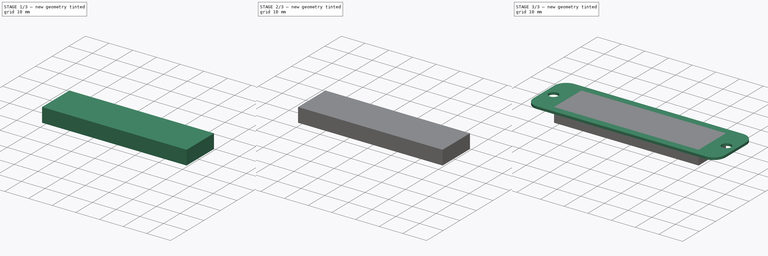
[diagram: build sequence overview — one tinted view per stage of 3, left to right]
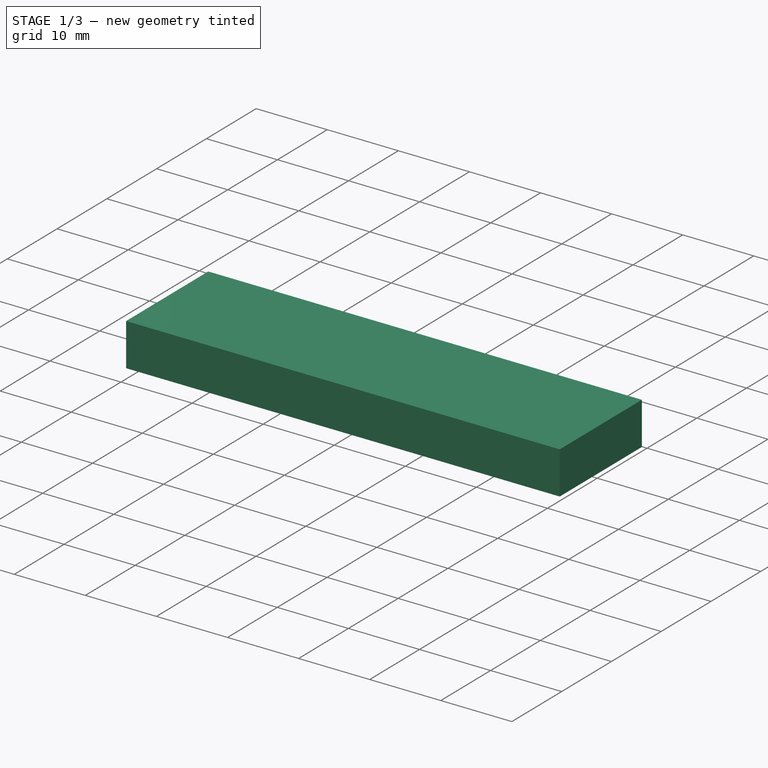
[diagram: stage 1 of 3 — iso view after this stage's code; geometry added in this stage tinted green]
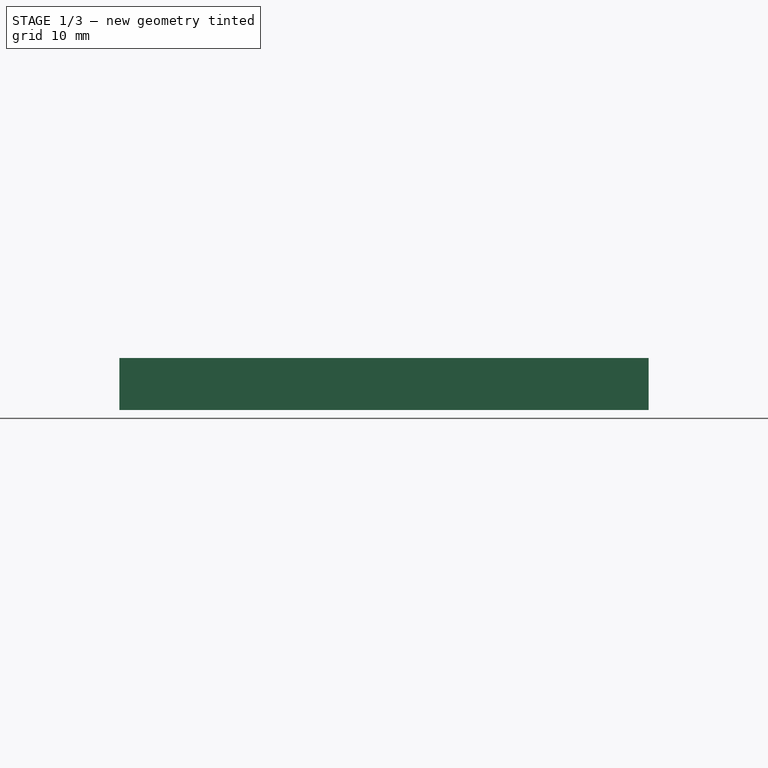
[diagram: stage 1 of 3 — front view after this stage's code; geometry added in this stage tinted green]
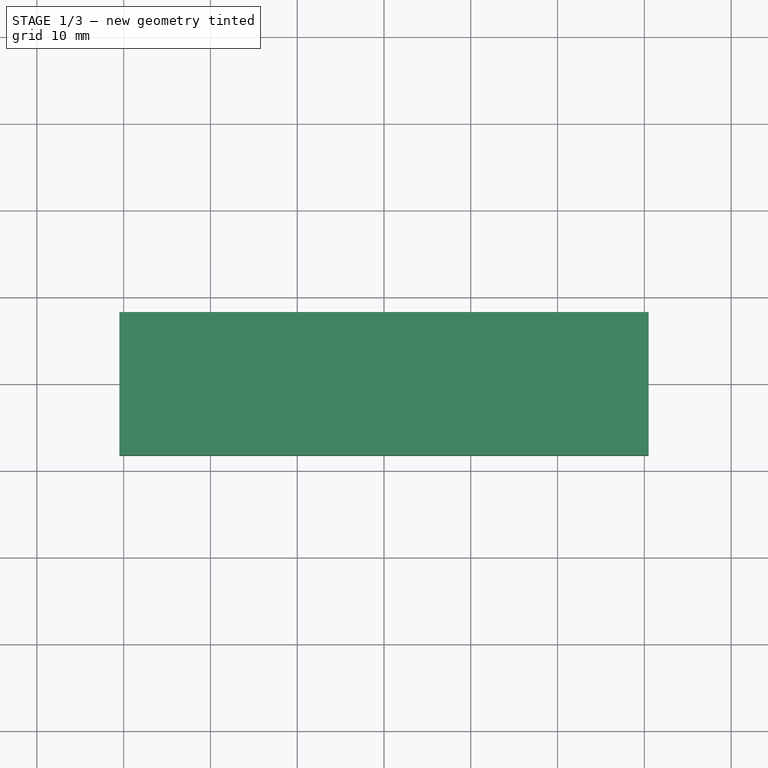
[diagram: stage 1 of 3 — top view after this stage's code; geometry added in this stage tinted green]
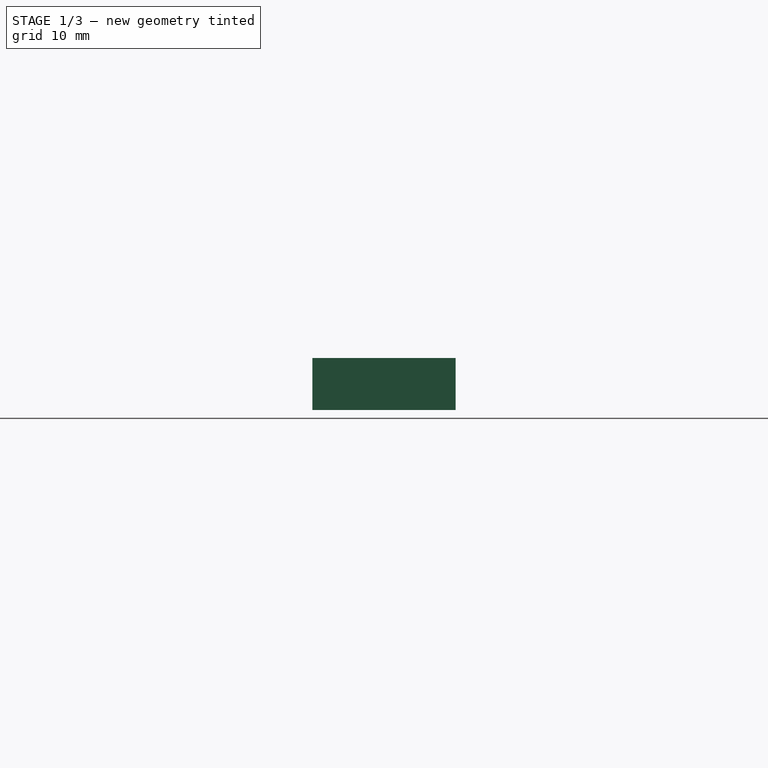
[diagram: stage 1 of 3 — right view after this stage's code; geometry added in this stage tinted green]
FCSTD DOCUMENT  (FreeCAD 0.19R24291 (Git))
Label: ws2812_holder
License: All rights reserved
LicenseURL: http://en.wikipedia.org/wiki/All_rights_reserved
objects: Sketcher::SketchObject×4, PartDesign::Pad×2, PartDesign::Pocket×2, PartDesign::Fillet×1, PartDesign::Body×1
note: 15 computed .brp shape members not serialized (recipe doc carries the construction recipe); baked Part::Feature solids carry a one-line shape summary decoded from their .brp

FEATURE [Sketcher::SketchObject] Sketch
  FullyConstrained = true
  MapMode = 5
  Support = -> [XY_Plane]
  sketch-geometry (8):
    g0: LineSegment StartX=-30.5 StartY=8.25 StartZ=0 EndX=30.5 EndY=8.25 EndZ=0
    g1: LineSegment StartX=30.5 StartY=8.25 StartZ=0 EndX=30.5 EndY=-8.25 EndZ=0
    g2: LineSegment StartX=30.5 StartY=-8.25 StartZ=0 EndX=-30.5 EndY=-8.25 EndZ=0
    g3: LineSegment StartX=-30.5 StartY=-8.25 StartZ=0 EndX=-30.5 EndY=8.25 EndZ=0
    g4: LineSegment StartX=-27.5 StartY=5.25 StartZ=0 EndX=27.5 EndY=5.25 EndZ=0
    g5: LineSegment StartX=27.5 StartY=5.25 StartZ=0 EndX=27.5 EndY=-5.25 EndZ=0
    g6: LineSegment StartX=27.5 StartY=-5.25 StartZ=0 EndX=-27.5 EndY=-5.25 EndZ=0
    g7: LineSegment StartX=-27.5 StartY=-5.25 StartZ=0 EndX=-27.5 EndY=5.25 EndZ=0
  constraints (22):
    c: Coincident(g0,g1)
    c: Coincident(g1,g2)
    c: Coincident(g2,g3)
    c: Coincident(g3,g0)
    c: Horizontal(g0)
    c: Horizontal(g2)
    c: Vertical(g1)
    c: Vertical(g3)
    c: Symmetric(g1,g0,g-1)
    c: Coincident(g4,g5)
    c: Coincident(g5,g6)
    c: Coincident(g6,g7)
    c: Coincident(g7,g4)
    c: Horizontal(g4)
    c: Horizontal(g6)
    c: Vertical(g5)
    c: Vertical(g7)
    c: Symmetric(g4,g5,g-1)
    c: Distance(g4) = 55
    c: Distance(g4,g1) = 3
    c: Distance(g5,g2) = 3
    c: Distance(g7) = 10.5
FEATURE [PartDesign::Pad] Pad
  Direction = (1,1,1)
  Length = 6
  Length2 = 100
  Profile = -> Sketch
  Type = 0
FEATURE [Sketcher::SketchObject] Sketch001
  FullyConstrained = true
  MapMode = 5
  Support = -> [XY_Plane]
  expr: Constraints[9] = Sketch.Constraints[18]
  expr: Constraints[10] = Sketch.Constraints[21]
  sketch-geometry (7):
    g0: LineSegment StartX=-27.5 StartY=5.25 StartZ=0 EndX=27.5 EndY=5.25 EndZ=0
    g1: LineSegment StartX=27.5 StartY=5.25 StartZ=0 EndX=27.5 EndY=-5.25 EndZ=0
    g2: LineSegment StartX=27.5 StartY=-5.25 StartZ=0 EndX=-27.5 EndY=-5.25 EndZ=0
    g3: LineSegment StartX=-27.5 StartY=-5.25 StartZ=0 EndX=-27.5 EndY=5.25 EndZ=0
    g4: LineSegment StartX=-27.5 StartY=-3.25 StartZ=0 EndX=27.5 EndY=-3.25 EndZ=0
    g5: Circle CenterX=-13 CenterY=-3.25 CenterZ=0 NormalX=0 NormalY=0 NormalZ=1 AngleXU=0 Radius=1
    g6: Circle CenterX=13 CenterY=-3.25 CenterZ=0 NormalX=0 NormalY=0 NormalZ=1 AngleXU=0 Radius=1
  constraints (20):
    c: Coincident(g0,g1)
    c: Coincident(g1,g2)
    c: Coincident(g2,g3)
    c: Coincident(g3,g0)
    c: Horizontal(g0)
    c: Horizontal(g2)
    c: Vertical(g1)
    c: Vertical(g3)
    c: Symmetric(g0,g1,g-1)
    c: Distance(g0) = 55
    c: Distance(g3) = 10.5
    c: PointOnObject(g4,g3)
    c: PointOnObject(g4,g1)
    c: Horizontal(g4)
    c: DistanceY(g1,g4) = 2
    c: PointOnObject(g5,g4)
    c: Equal(g6,g5)
    c: Diameter(g5) = 2
    c: DistanceX(g5,g6) = 26
    c: Symmetric(g6,g5,g-2)
FEATURE [PartDesign::Pocket] Pocket
  BaseFeature = -> Pad
  Length = 3
  Length2 = 100
  Profile = -> Sketch001
  Reversed = true
  Type = 0
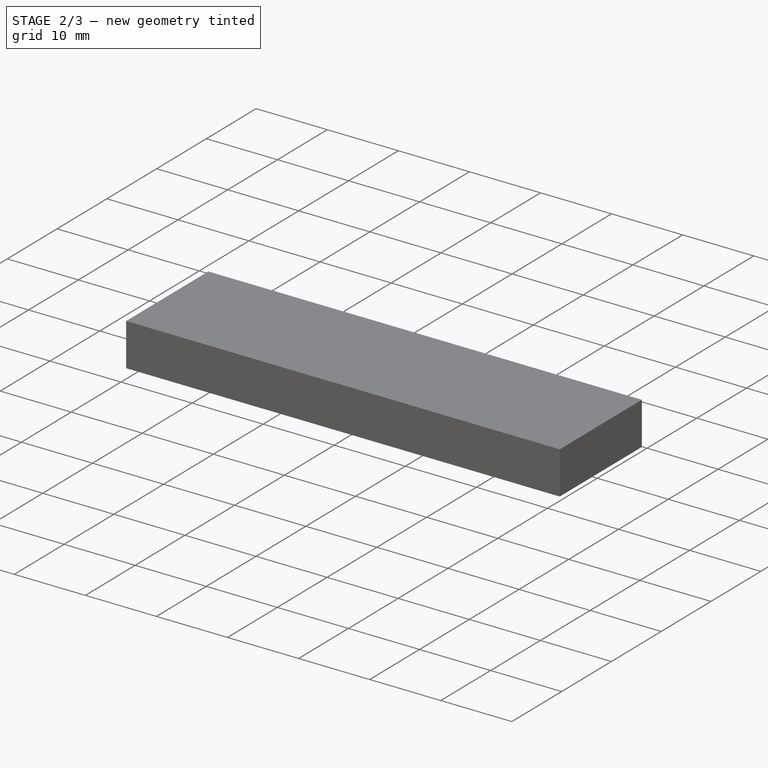
[diagram: stage 2 of 3 — iso view after this stage's code; geometry added in this stage tinted green]
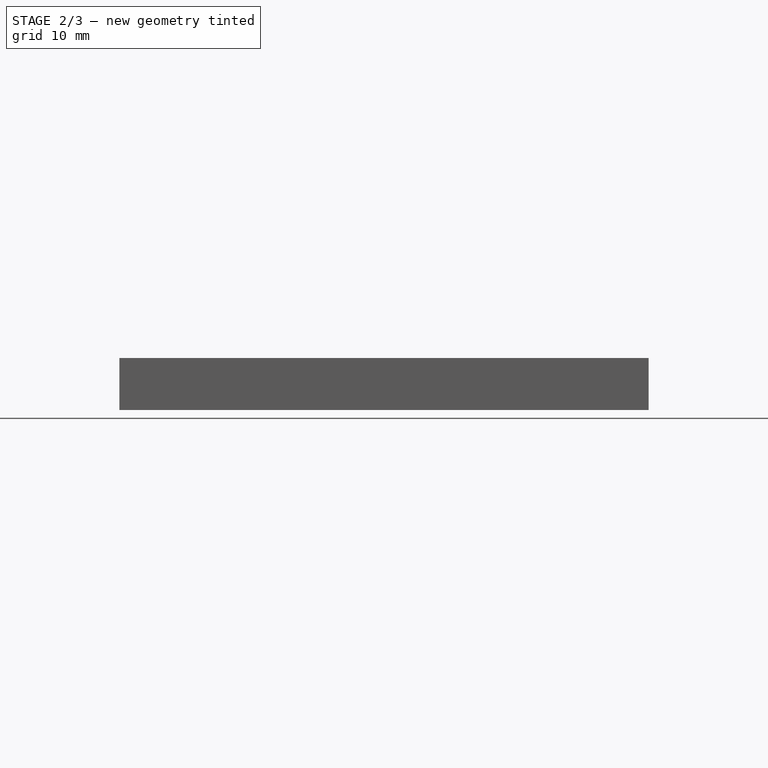
[diagram: stage 2 of 3 — front view after this stage's code; geometry added in this stage tinted green]
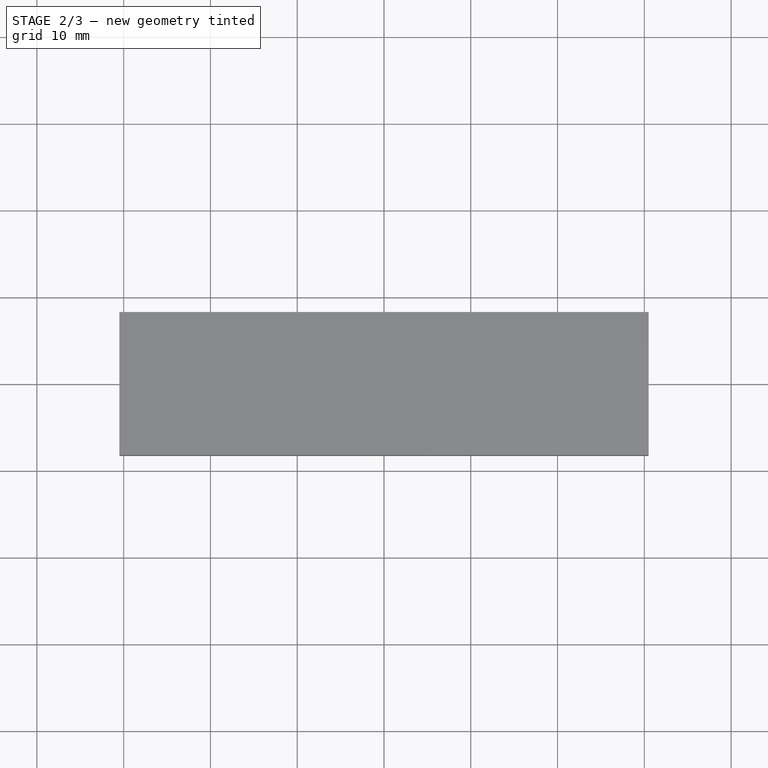
[diagram: stage 2 of 3 — top view after this stage's code; geometry added in this stage tinted green]
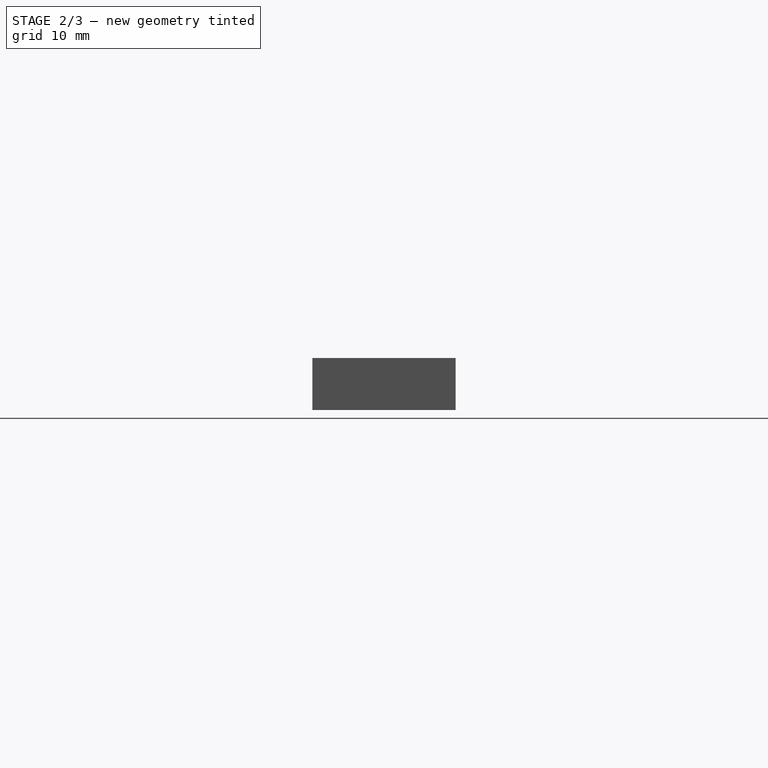
[diagram: stage 2 of 3 — right view after this stage's code; geometry added in this stage tinted green]
FEATURE [Sketcher::SketchObject] Sketch002
  FullyConstrained = true
  MapMode = 5
  Support = -> [XY_Plane]
  expr: Constraints[9] = Sketch001.Constraints[9]
  expr: Constraints[10] = Sketch001.Constraints[10]
  sketch-geometry (7):
    g0: LineSegment StartX=-27.5 StartY=5.25 StartZ=0 EndX=27.5 EndY=5.25 EndZ=0
    g1: LineSegment StartX=27.5 StartY=5.25 StartZ=0 EndX=27.5 EndY=-5.25 EndZ=0
    g2: LineSegment StartX=27.5 StartY=-5.25 StartZ=0 EndX=-27.5 EndY=-5.25 EndZ=0
    g3: LineSegment StartX=-27.5 StartY=-5.25 StartZ=0 EndX=-27.5 EndY=5.25 EndZ=0
    g4: LineSegment StartX=-27.5 StartY=5.25 StartZ=0 EndX=-27.5 EndY=-0.75 EndZ=0
    g5: LineSegment StartX=-27.5 StartY=-0.75 StartZ=0 EndX=27.5 EndY=-0.75 EndZ=0
    g6: LineSegment StartX=27.5 StartY=-0.75 StartZ=0 EndX=27.5 EndY=5.25 EndZ=0
  constraints (19):
    c: Coincident(g0,g1)
    c: Coincident(g1,g2)
    c: Coincident(g2,g3)
    c: Coincident(g3,g0)
    c: Horizontal(g0)
    c: Horizontal(g2)
    c: Vertical(g1)
    c: Vertical(g3)
    c: Symmetric(g0,g1,g-1)
    c: Distance(g0) = 55
    c: Distance(g3) = 10.5
    c: Coincident(g4,g0)
    c: PointOnObject(g4,g3)
    c: Coincident(g5,g4)
    c: PointOnObject(g5,g1)
    c: Horizontal(g5)
    c: Coincident(g6,g5)
    c: Coincident(g6,g0)
    c: Distance(g6) = 6
FEATURE [PartDesign::Pocket] Pocket001
  BaseFeature = -> Pocket
  Length = 4
  Length2 = 100
  Profile = -> Sketch002
  Reversed = true
  Type = 0
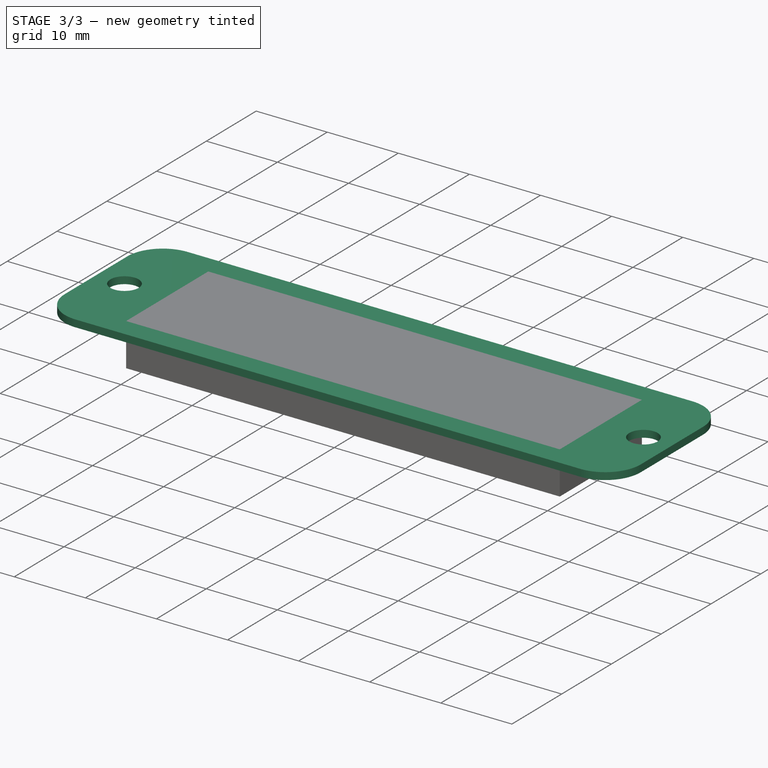
[diagram: stage 3 of 3 — iso view after this stage's code; geometry added in this stage tinted green]
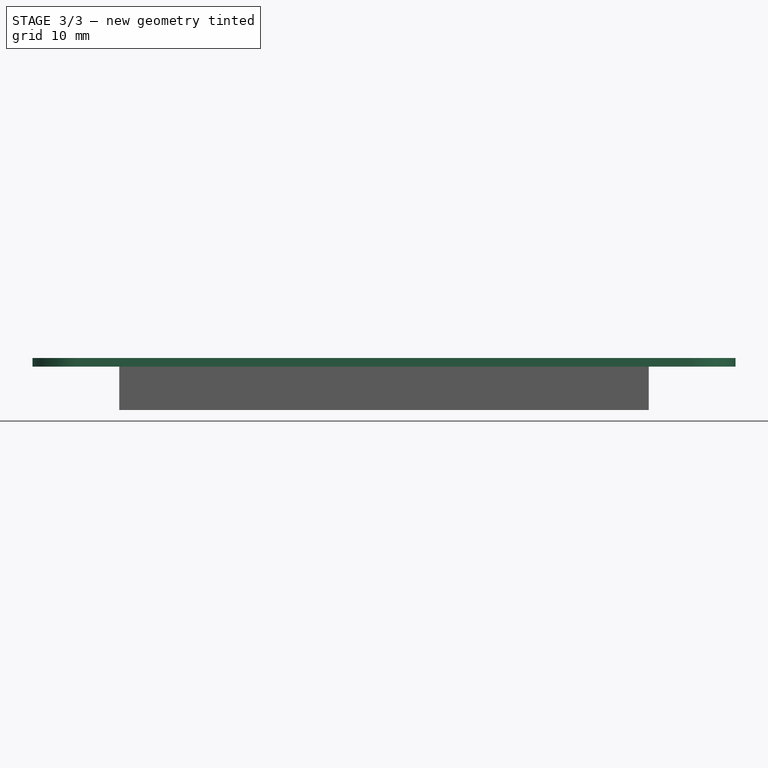
[diagram: stage 3 of 3 — front view after this stage's code; geometry added in this stage tinted green]
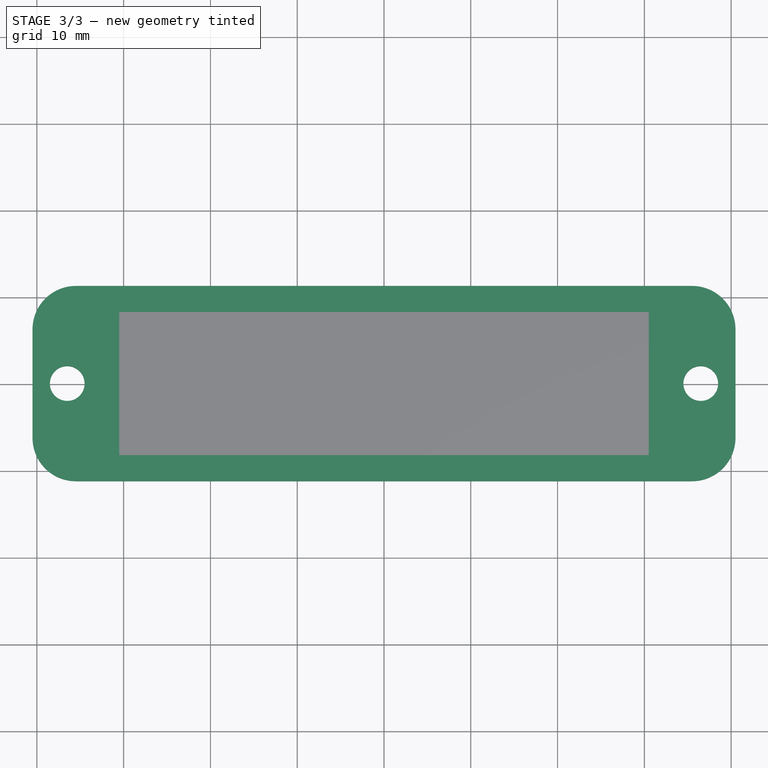
[diagram: stage 3 of 3 — top view after this stage's code; geometry added in this stage tinted green]
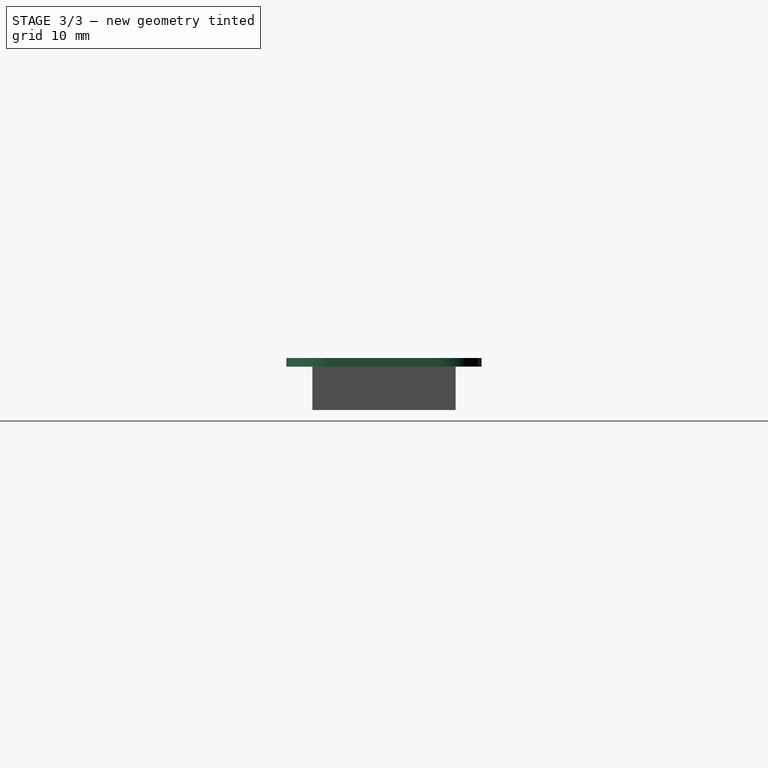
[diagram: stage 3 of 3 — right view after this stage's code; geometry added in this stage tinted green]
FEATURE [Sketcher::SketchObject] Sketch003
  FullyConstrained = true
  MapMode = 5
  Support = -> [XY_Plane]
  expr: Constraints[18] = Sketch.Constraints[18]
  expr: Constraints[19] = Sketch.Constraints[19]
  expr: Constraints[20] = Sketch.Constraints[20]
  expr: Constraints[21] = Sketch.Constraints[21]
  sketch-geometry (14):
    g0: LineSegment StartX=-30.5 StartY=8.25 StartZ=0 EndX=30.5 EndY=8.25 EndZ=0
    g1: LineSegment StartX=30.5 StartY=8.25 StartZ=0 EndX=30.5 EndY=-8.25 EndZ=0
    g2: LineSegment StartX=30.5 StartY=-8.25 StartZ=0 EndX=-30.5 EndY=-8.25 EndZ=0
    g3: LineSegment StartX=-30.5 StartY=-8.25 StartZ=0 EndX=-30.5 EndY=8.25 EndZ=0
    g4: LineSegment StartX=-27.5 StartY=5.25 StartZ=0 EndX=27.5 EndY=5.25 EndZ=0
    g5: LineSegment StartX=27.5 StartY=5.25 StartZ=0 EndX=27.5 EndY=-5.25 EndZ=0
    g6: LineSegment StartX=27.5 StartY=-5.25 StartZ=0 EndX=-27.5 EndY=-5.25 EndZ=0
    g7: LineSegment StartX=-27.5 StartY=-5.25 StartZ=0 EndX=-27.5 EndY=5.25 EndZ=0
    g8: LineSegment StartX=-40.5 StartY=11.25 StartZ=0 EndX=40.5 EndY=11.25 EndZ=0
    g9: LineSegment StartX=40.5 StartY=11.25 StartZ=0 EndX=40.5 EndY=-11.25 EndZ=0
    g10: LineSegment StartX=40.5 StartY=-11.25 StartZ=0 EndX=-40.5 EndY=-11.25 EndZ=0
    g11: LineSegment StartX=-40.5 StartY=-11.25 StartZ=0 EndX=-40.5 EndY=11.25 EndZ=0
    g12: Circle CenterX=36.5 CenterY=0 CenterZ=0 NormalX=0 NormalY=0 NormalZ=1 AngleXU=0 Radius=2
    g13: Circle CenterX=-36.5 CenterY=0 CenterZ=0 NormalX=0 NormalY=0 NormalZ=1 AngleXU=0 Radius=2
  constraints (38):
    c: Coincident(g0,g1)
    c: Coincident(g1,g2)
    c: Coincident(g2,g3)
    c: Coincident(g3,g0)
    c: Horizontal(g0)
    c: Horizontal(g2)
    c: Vertical(g1)
    c: Vertical(g3)
    c: Symmetric(g1,g0,g-1)
    c: Coincident(g4,g5)
    c: Coincident(g5,g6)
    c: Coincident(g6,g7)
    c: Coincident(g7,g4)
    c: Horizontal(g4)
    c: Horizontal(g6)
    c: Vertical(g5)
    c: Vertical(g7)
    c: Symmetric(g4,g5,g-1)
    c: Distance(g4) = 55
    c: Distance(g4,g1) = 3
    c: Distance(g5,g2) = 3
    c: Distance(g7) = 10.5
    c: Coincident(g8,g9)
    c: Coincident(g9,g10)
    c: Coincident(g10,g11)
    c: Coincident(g11,g8)
    c: Horizontal(g8)
    c: Horizontal(g10)
    c: Vertical(g9)
    c: Vertical(g11)
    c: Symmetric(g8,g9,g-1)
    c: Distance(g1,g9) = 10
    c: Distance(g1,g10) = 3
    c: PointOnObject(g12,g-1)
    c: Symmetric(g12,g13,g-2)
    c: Equal(g13,g12)
    c: Diameter(g12) = 4
    c: Distance(g13,g11) = 4
FEATURE [PartDesign::Pad] Pad001
  BaseFeature = -> Pocket001
  Direction = (1,1,1)
  Length = 5
  Length2 = -6
  Profile = -> Sketch003
  Type = 4
FEATURE [PartDesign::Fillet] Fillet
  Base = -> Pad001 [Edge37,Edge40,Edge42,Edge38]
  BaseFeature = -> Pad001
  Radius = 5
  SupportTransform = false
FEATURE [PartDesign::Body] Body
  Group = -> [Sketch,Pad,Sketch001,Pocket,Sketch002,Pocket001,Sketch003,Pad001,Fillet]
  Origin = -> Origin
  Tip = -> Fillet
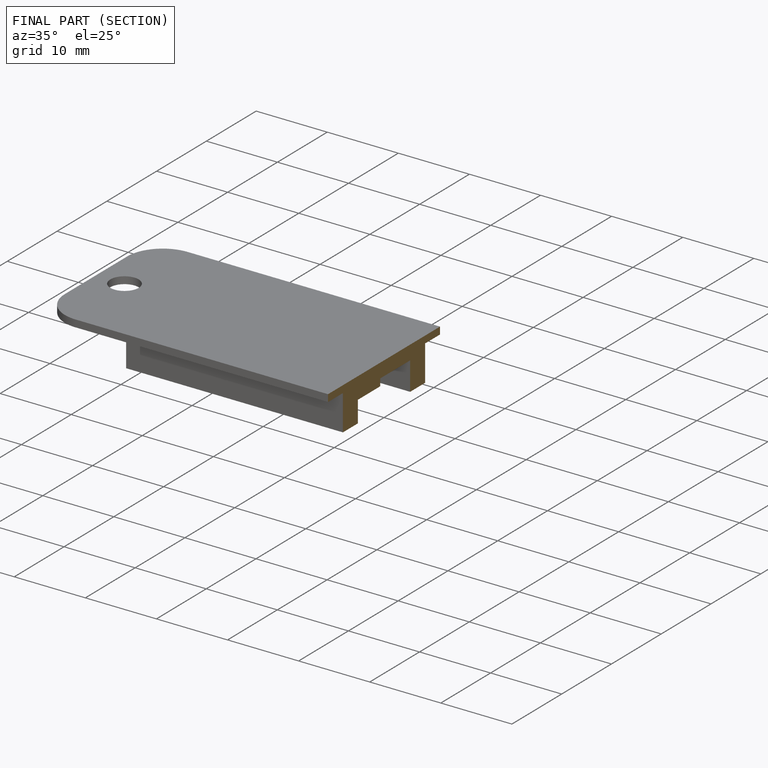
[diagram: finished part — half-section view (interior)]
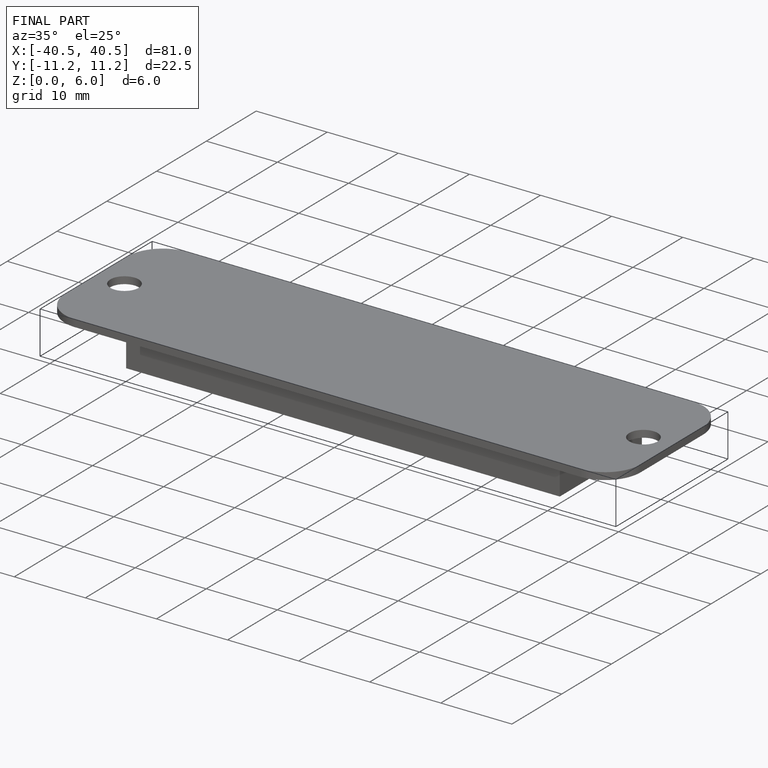
[diagram: finished part — iso view with bounding-box wireframe]
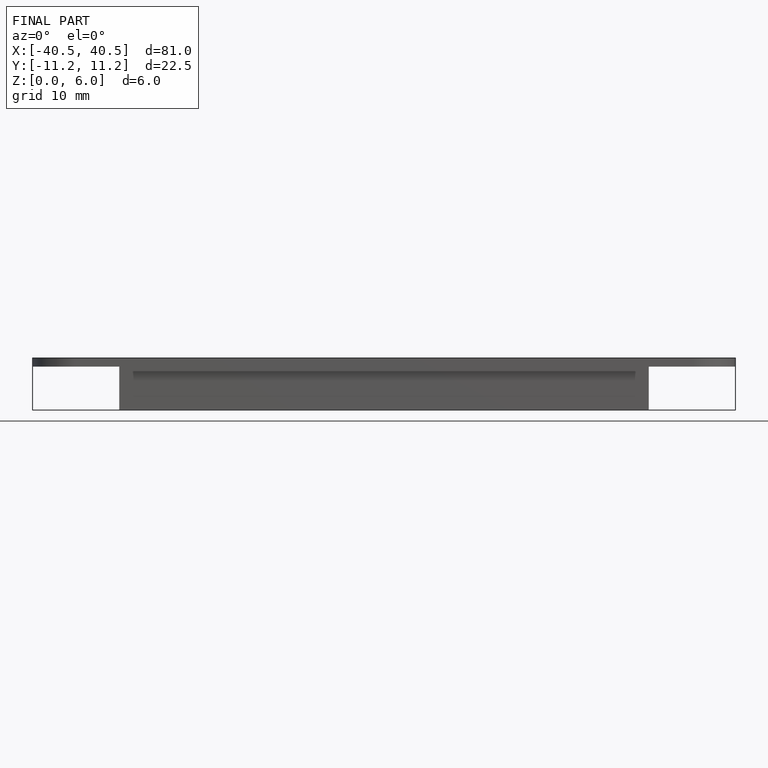
[diagram: finished part — front view with bounding-box wireframe]
